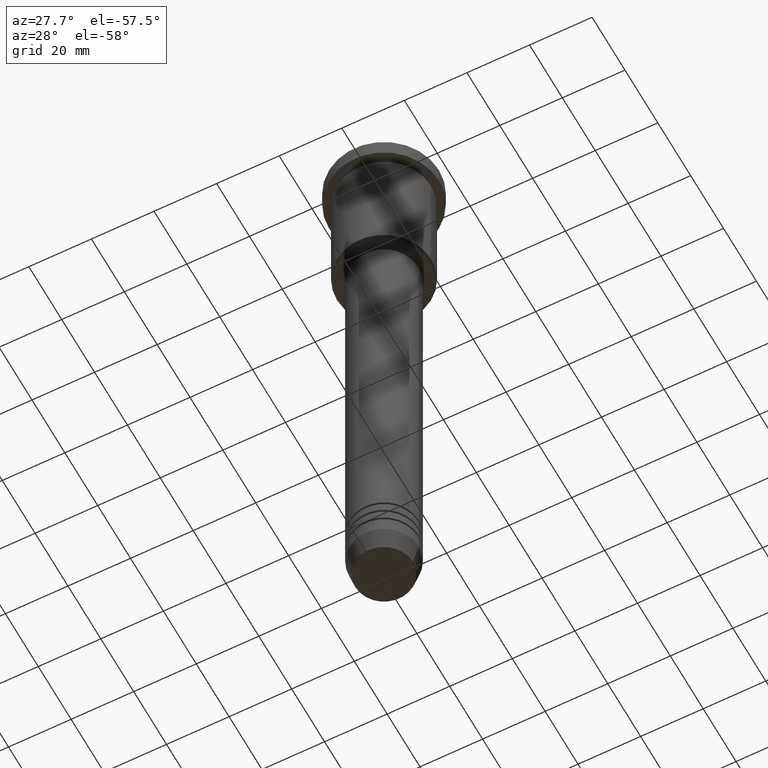
[diagram: clean part render]
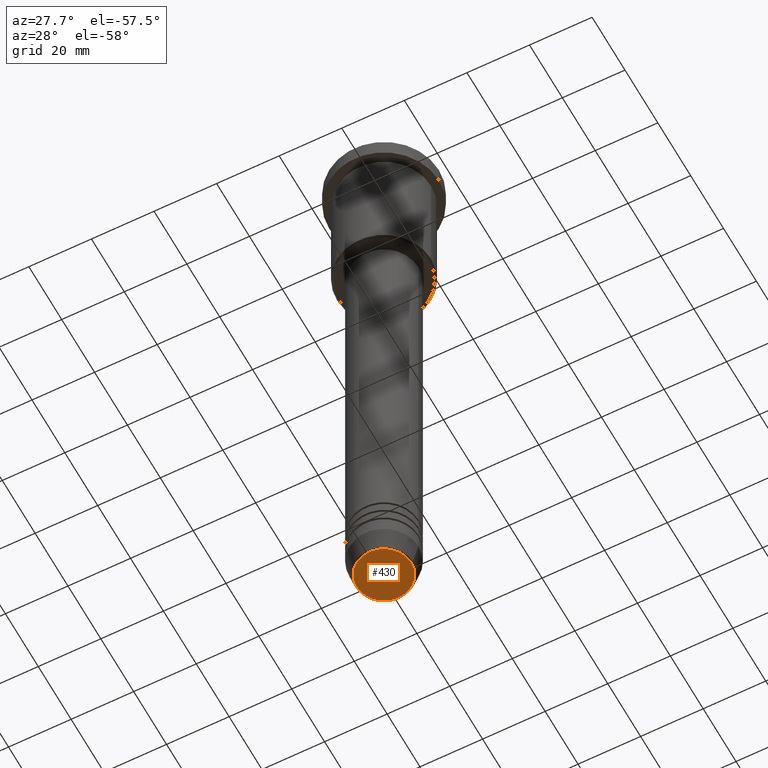
[diagram: same view with one face highlighted and labeled with its STEP entity id]
A machine part, auxiliary view. The second image highlights one B-rep face of the part: STEP entity #430.
In plain terms, the highlighted planar face has unit normal (0, -0, 1).
Its self-contained STEP definition (entity closure, byte-faithful):
#12 = EDGE_CURVE ( 'NONE', #1103, #931, #290, .T. ) ;
#40 = EDGE_LOOP ( 'NONE', ( #126, #485 ) ) ;
#126 = ORIENTED_EDGE ( 'NONE', *, *, #12, .T. ) ;
#154 = FACE_OUTER_BOUND ( 'NONE', #40, .T. ) ;
#219 = CARTESIAN_POINT ( 'NONE',  ( 8.740692158992656502, 0.000000000000000000, -201.0000000000000000 ) ) ;
#290 = CIRCLE ( 'NONE', #998, 8.740692158992656502 ) ;
#292 = AXIS2_PLACEMENT_3D ( 'NONE', #945, #705, #912 ) ;
#315 = AXIS2_PLACEMENT_3D ( 'NONE', #902, #1167, #615 ) ;
#430 = ADVANCED_FACE ( 'NONE', ( #154 ), #948, .F. ) ;
#485 = ORIENTED_EDGE ( 'NONE', *, *, #600, .T. ) ;
#600 = EDGE_CURVE ( 'NONE', #931, #1103, #846, .T. ) ;
#615 = DIRECTION ( 'NONE',  ( 1.000000000000000000, 0.000000000000000000, 0.000000000000000000 ) ) ;
#650 = DIRECTION ( 'NONE',  ( 1.000000000000000000, 0.000000000000000000, 0.000000000000000000 ) ) ;
#693 = CARTESIAN_POINT ( 'NONE',  ( 0.000000000000000000, 0.000000000000000000, -201.0000000000000000 ) ) ;
#705 = DIRECTION ( 'NONE',  ( 0.000000000000000000, -0.000000000000000000, 1.000000000000000000 ) ) ;
#712 = DIRECTION ( 'NONE',  ( 0.000000000000000000, 0.000000000000000000, -1.000000000000000000 ) ) ;
#832 = CARTESIAN_POINT ( 'NONE',  ( -8.740692158992656502, 1.099999016768739653E-15, -201.0000000000000000 ) ) ;
#846 = CIRCLE ( 'NONE', #315, 8.740692158992656502 ) ;
#902 = CARTESIAN_POINT ( 'NONE',  ( 0.000000000000000000, 0.000000000000000000, -201.0000000000000000 ) ) ;
#912 = DIRECTION ( 'NONE',  ( 1.000000000000000000, 0.000000000000000000, 0.000000000000000000 ) ) ;
#931 = VERTEX_POINT ( 'NONE', #832 ) ;
#945 = CARTESIAN_POINT ( 'NONE',  ( 0.000000000000000000, 0.000000000000000000, -201.0000000000000000 ) ) ;
#948 = PLANE ( 'NONE',  #292 ) ;
#998 = AXIS2_PLACEMENT_3D ( 'NONE', #693, #712, #650 ) ;
#1103 = VERTEX_POINT ( 'NONE', #219 ) ;
#1167 = DIRECTION ( 'NONE',  ( 0.000000000000000000, 0.000000000000000000, -1.000000000000000000 ) ) ;